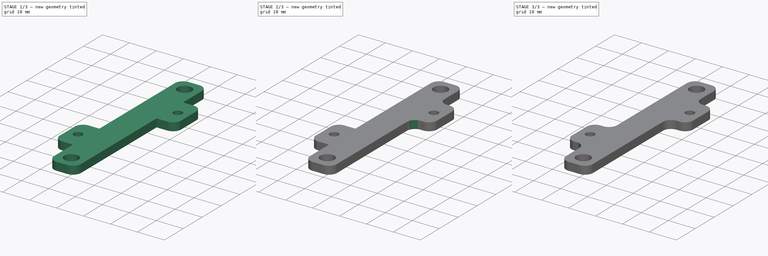
[diagram: build sequence overview — one tinted view per stage of 3, left to right]
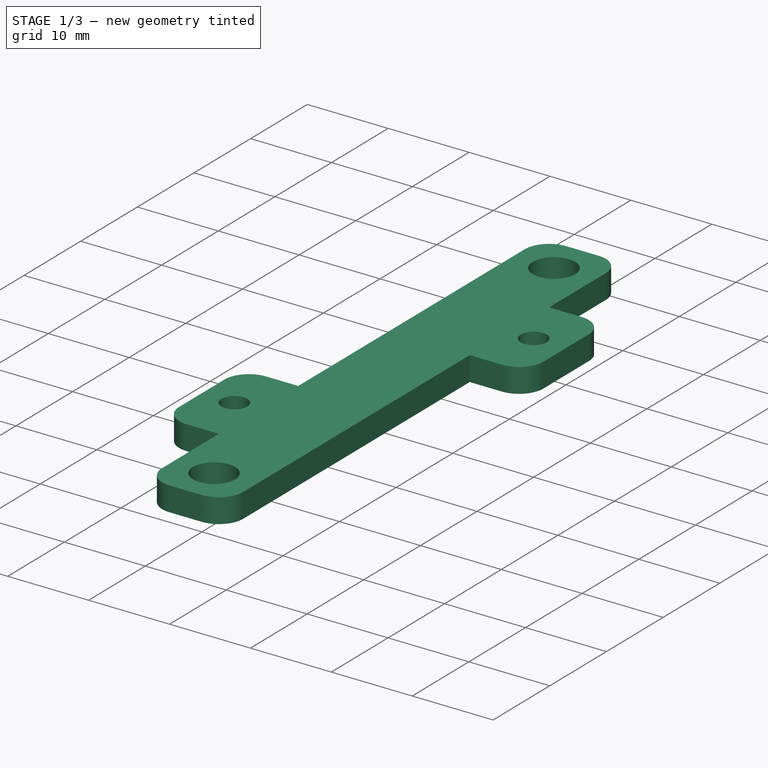
[diagram: stage 1 of 3 — iso view after this stage's code; geometry added in this stage tinted green]
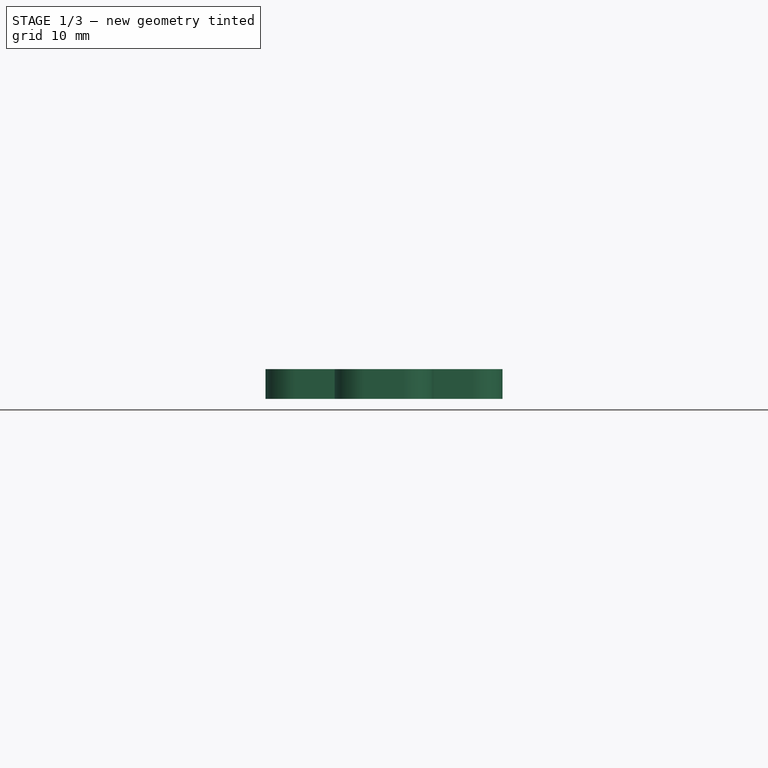
[diagram: stage 1 of 3 — front view after this stage's code; geometry added in this stage tinted green]
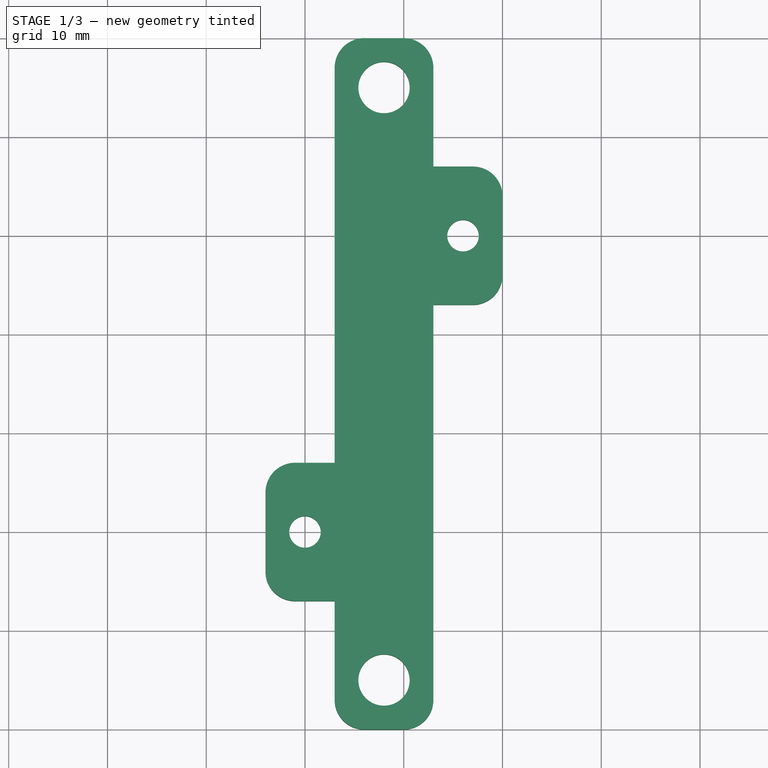
[diagram: stage 1 of 3 — top view after this stage's code; geometry added in this stage tinted green]
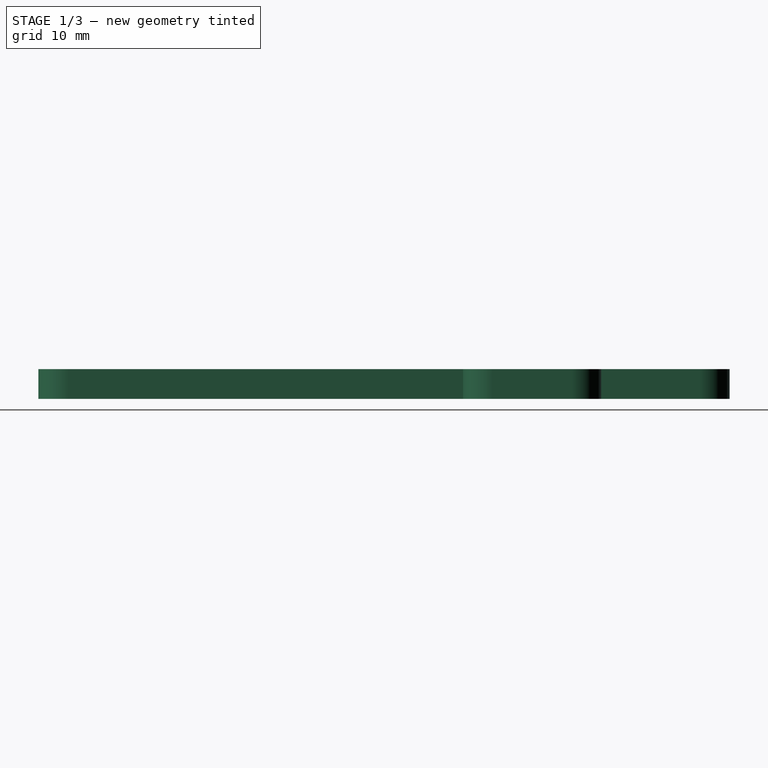
[diagram: stage 1 of 3 — right view after this stage's code; geometry added in this stage tinted green]
FCSTD DOCUMENT  (FreeCAD 0.19R24276 (Git))
Label: Lm2596_dcdc_holder
License: All rights reserved
LicenseURL: http://en.wikipedia.org/wiki/All_rights_reserved
objects: PartDesign::Fillet×5, Sketcher::SketchObject×1, PartDesign::Pad×1, PartDesign::Body×1
note: 14 computed .brp shape members not serialized (recipe doc carries the construction recipe); baked Part::Feature solids carry a one-line shape summary decoded from their .brp

FEATURE [Sketcher::SketchObject] Sketch
  FullyConstrained = false
  MapMode = 5
  Support = -> [XY_Plane]
  sketch-geometry (26):
    g0: Circle CenterX=0 CenterY=0 CenterZ=0 NormalX=0 NormalY=0 NormalZ=1 AngleXU=0 Radius=1.6
    g1: Circle CenterX=16 CenterY=30 CenterZ=0 NormalX=0 NormalY=0 NormalZ=1 AngleXU=0 Radius=1.6
    g2: LineSegment StartX=20 StartY=37 StartZ=0 EndX=20 EndY=23 EndZ=0
    g3: LineSegment StartX=-4 StartY=-7 StartZ=0 EndX=-4 EndY=37.7538 EndZ=0
    g4: Circle CenterX=8 CenterY=45 CenterZ=0 NormalX=0 NormalY=0 NormalZ=1 AngleXU=0 Radius=2.6
    g5: Circle CenterX=8 CenterY=25 CenterZ=0 NormalX=0 NormalY=0 NormalZ=1 AngleXU=0 Radius=2.6
    g6: Circle CenterX=8 CenterY=5 CenterZ=0 NormalX=0 NormalY=0 NormalZ=1 AngleXU=0 Radius=2.6
    g7: Circle CenterX=8 CenterY=-15 CenterZ=0 NormalX=0 NormalY=0 NormalZ=1 AngleXU=0 Radius=2.6
    g8: LineSegment StartX=8 StartY=-15 StartZ=0 EndX=8 EndY=15 EndZ=0
    g9: LineSegment StartX=3 StartY=50 StartZ=0 EndX=13 EndY=50 EndZ=0
    g10: LineSegment StartX=13 StartY=50 StartZ=0 EndX=13 EndY=-20 EndZ=0
    g11: LineSegment StartX=13 StartY=-20 StartZ=0 EndX=3 EndY=-20 EndZ=0
    g12: LineSegment StartX=3 StartY=-20 StartZ=0 EndX=3 EndY=50 EndZ=0
    g13: LineSegment StartX=8 StartY=45 StartZ=0 EndX=8 EndY=50 EndZ=0
    g14: LineSegment StartX=3 StartY=50 StartZ=0 EndX=13 EndY=50 EndZ=0
    g15: LineSegment StartX=13 StartY=50 StartZ=0 EndX=13 EndY=37 EndZ=0
    g16: LineSegment StartX=20 StartY=37 StartZ=0 EndX=13 EndY=37 EndZ=0
    g17: LineSegment StartX=20 StartY=37 StartZ=0 EndX=20 EndY=23 EndZ=0
    g18: LineSegment StartX=20 StartY=23 StartZ=0 EndX=13 EndY=23 EndZ=0
    g19: LineSegment StartX=13 StartY=23 StartZ=0 EndX=13 EndY=-20 EndZ=0
    g20: LineSegment StartX=3 StartY=-20 StartZ=0 EndX=13 EndY=-20 EndZ=0
    g21: LineSegment StartX=3 StartY=-20 StartZ=0 EndX=3 EndY=-7 EndZ=0
    g22: LineSegment StartX=-4 StartY=-7 StartZ=0 EndX=3 EndY=-7 EndZ=0
    g23: LineSegment StartX=-4 StartY=-7 StartZ=0 EndX=-4 EndY=7 EndZ=0
    g24: LineSegment StartX=-4 StartY=7 StartZ=0 EndX=3 EndY=7 EndZ=0
    g25: LineSegment StartX=3 StartY=7 StartZ=0 EndX=3 EndY=50 EndZ=0
  constraints (69):
    c: Coincident(g0,g-1)
    c: Diameter(g0) = 3.2
    c: Equal(g0,g1)
    c: DistanceX(g-1,g1) = 16
    c: DistanceY(g-1,g1) = 30
    c: Vertical(g2)
    c: Vertical(g3)
    c: DistanceX(g3,g-1) = 4
    c: DistanceY(g3,g-1) = 7
    c: Vertical(g5,g4)
    c: Diameter(g5) = 5.2
    c: Equal(g5,g4)
    c: DistanceY(g5,g4) = 20
    c: DistanceY(g6,g5) = 20
    c: Equal(g6,g5)
    c: Vertical(g6,g5)
    c: Vertical(g7,g6)
    c: Equal(g7,g6)
    c: DistanceY(g7,g6) = 20
    c: Coincident(g8,g7)
    c: Symmetric(g-1,g1,g8)
    c: Coincident(g9,g10)
    c: Coincident(g10,g11)
    c: Coincident(g11,g12)
    c: Coincident(g12,g9)
    c: Horizontal(g9)
    c: Horizontal(g11)
    c: Vertical(g10)
    c: Vertical(g12)
    c: Coincident(g13,g4)
    c: Vertical(g13)
    c: Symmetric(g9,g9,g13)
    c: Symmetric(g5,g6,g8)
    c: Coincident(g14,g9)
    c: Coincident(g15,g9)
    c: Vertical(g15)
    c: Coincident(g16,g15)
    c: Coincident(g14,g15)
    c: Coincident(g17,g16)
    c: Coincident(g17,g2)
    c: Coincident(g18,g17)
    c: Horizontal(g18)
    c: PointOnObject(g18,g10)
    c: Coincident(g19,g18)
    c: Vertical(g19)
    c: DistanceX(g14,g14) = 10
    c: DistanceY(g4,g14) = 5
    c: DistanceY(g11,g7) = 5
    c: Coincident(g20,g11)
    c: Horizontal(g20)
    c: Coincident(g19,g20)
    c: Coincident(g21,g20)
    c: Vertical(g21)
    c: Coincident(g22,g21)
    c: Coincident(g23,g22)
    c: Vertical(g23)
    c: Coincident(g24,g23)
    c: Horizontal(g24)
    c: PointOnObject(g24,g12)
    c: Coincident(g25,g24)
    c: Coincident(g25,g14)
    c: Coincident(g22,g3)
    c: DistanceY(g17,g1) = 7
    c: DistanceY(g1,g16) = 7
    c: Horizontal(g16)
    c: Coincident(g2,g16)
    c: Horizontal(g22)
    c: DistanceY(g0,g23) = 7
    c: DistanceX(g1,g16) = 4
FEATURE [PartDesign::Pad] Pad
  Direction = (1,1,1)
  Length = 3
  Length2 = 100
  Profile = -> Sketch
  Type = 0
FEATURE [PartDesign::Fillet] Fillet
  Base = -> Pad [Edge17,Edge20,Edge11,Edge8,Edge26,Edge29,Edge1,Edge2]
  BaseFeature = -> Pad
  Radius = 3
  SupportTransform = false
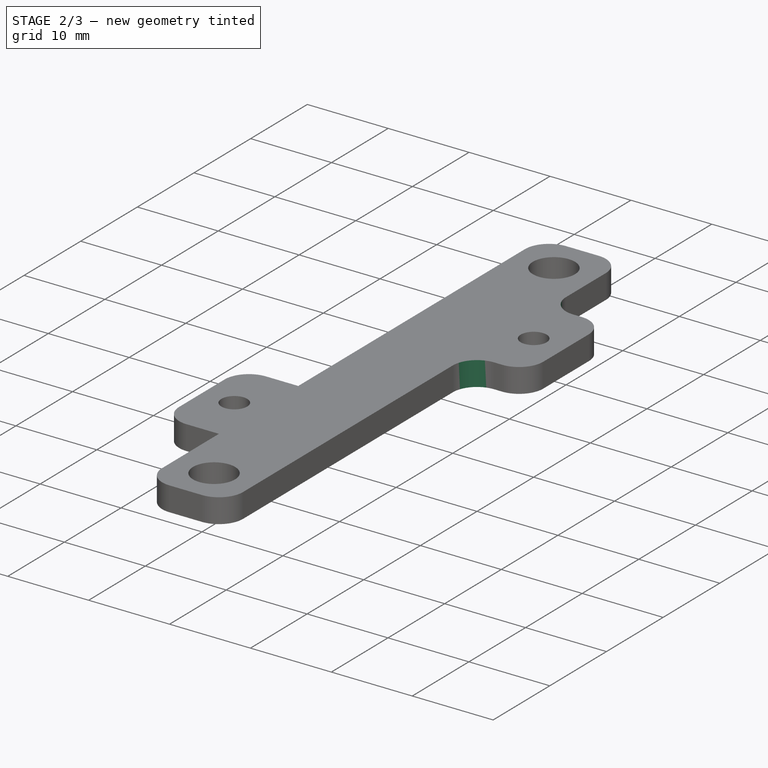
[diagram: stage 2 of 3 — iso view after this stage's code; geometry added in this stage tinted green]
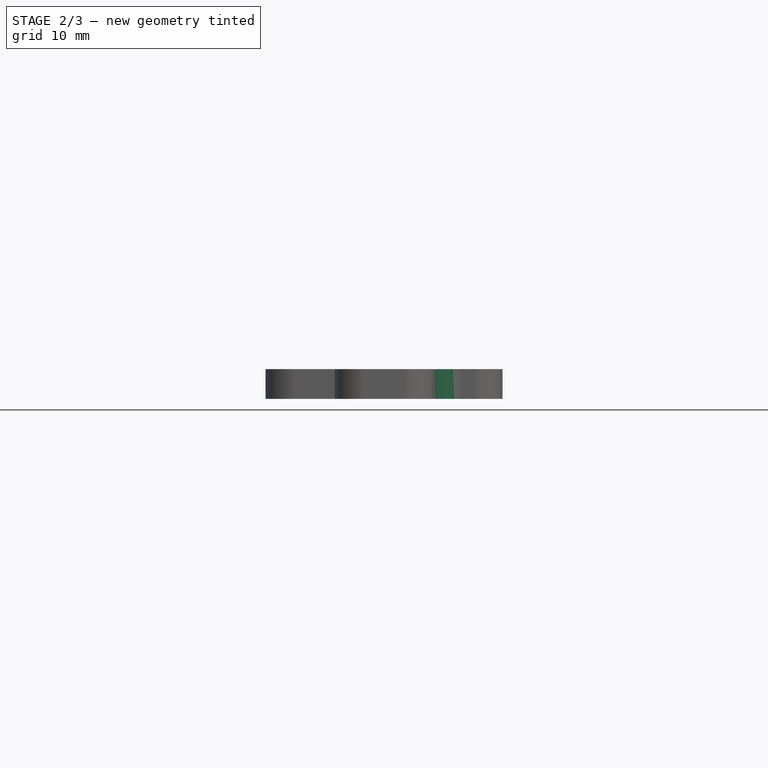
[diagram: stage 2 of 3 — front view after this stage's code; geometry added in this stage tinted green]
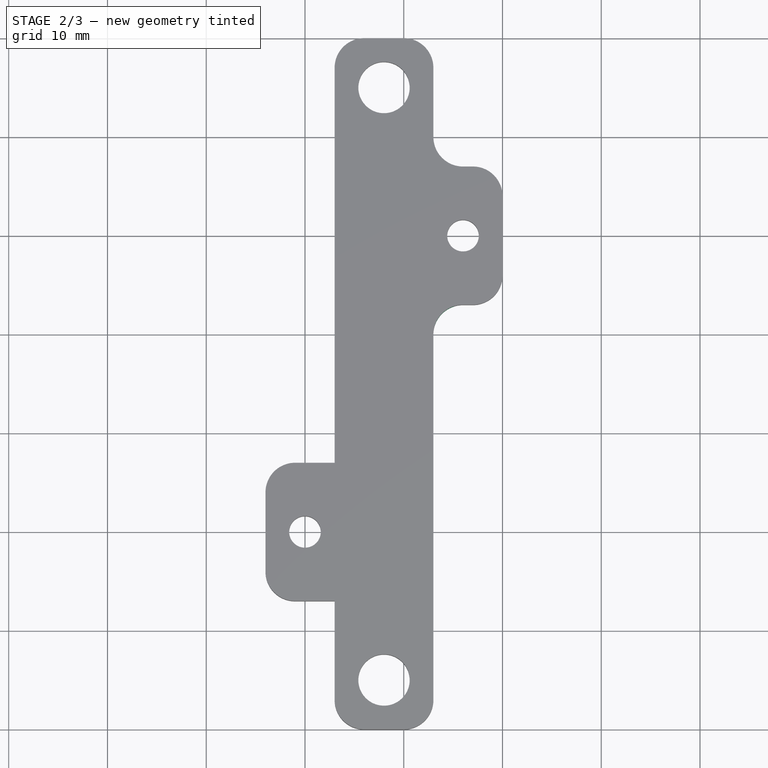
[diagram: stage 2 of 3 — top view after this stage's code; geometry added in this stage tinted green]
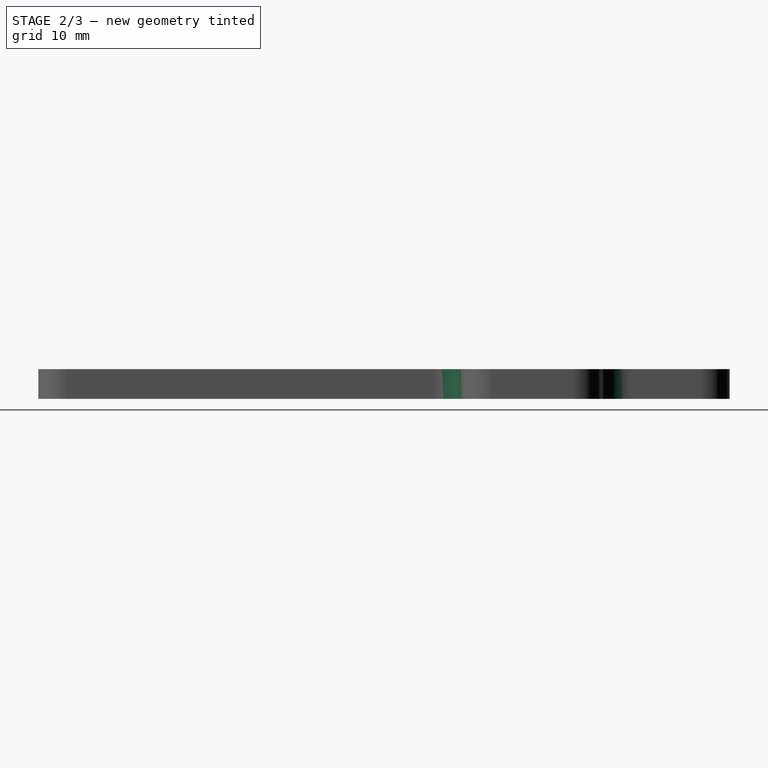
[diagram: stage 2 of 3 — right view after this stage's code; geometry added in this stage tinted green]
FEATURE [PartDesign::Fillet] Fillet001
  Base = -> Fillet [Edge54]
  BaseFeature = -> Fillet
  Radius = 3
  SupportTransform = false
FEATURE [PartDesign::Fillet] Fillet002
  Base = -> Fillet001 [Edge49]
  BaseFeature = -> Fillet001
  Radius = 3
  SupportTransform = false
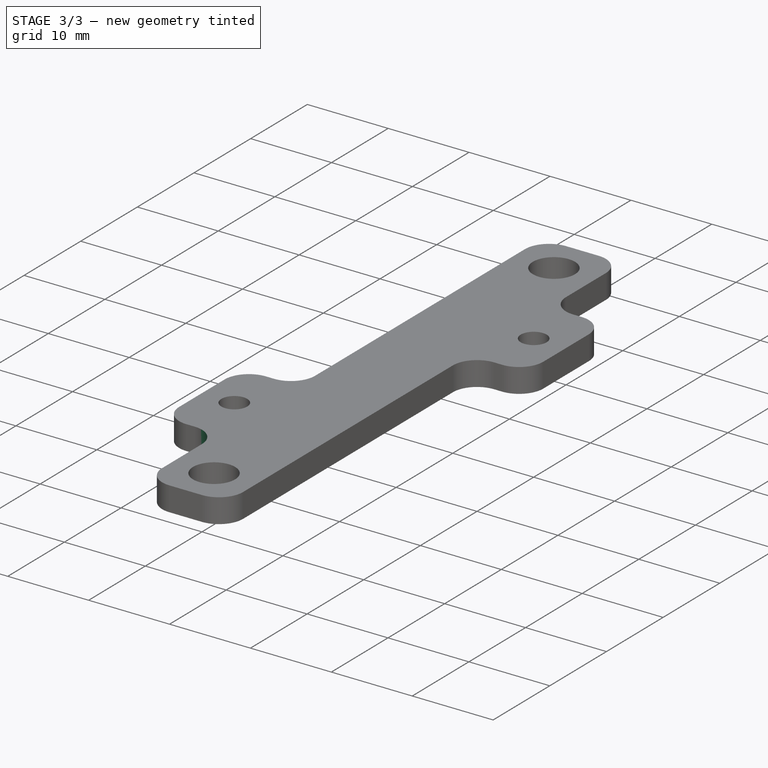
[diagram: stage 3 of 3 — iso view after this stage's code; geometry added in this stage tinted green]
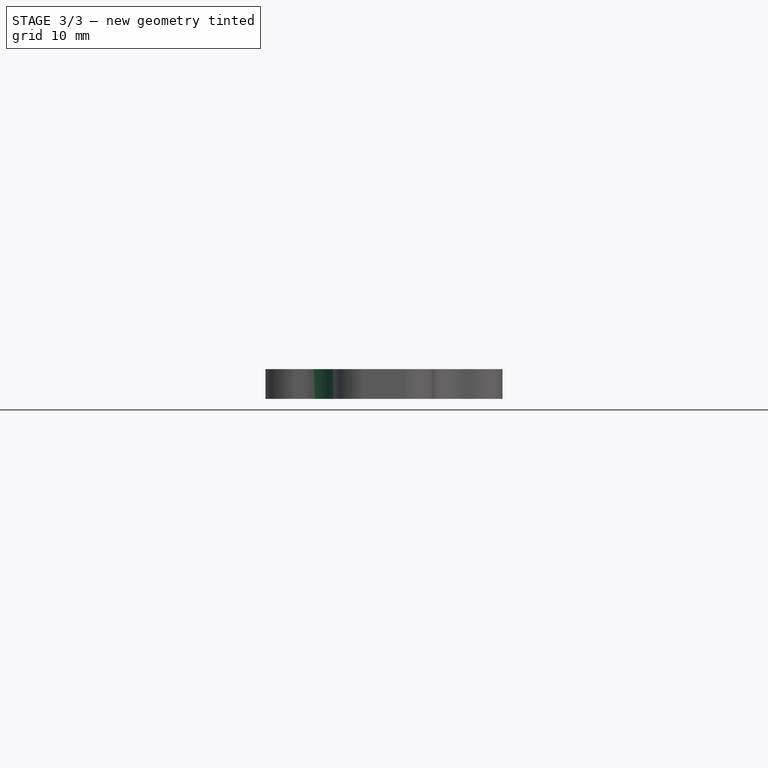
[diagram: stage 3 of 3 — front view after this stage's code; geometry added in this stage tinted green]
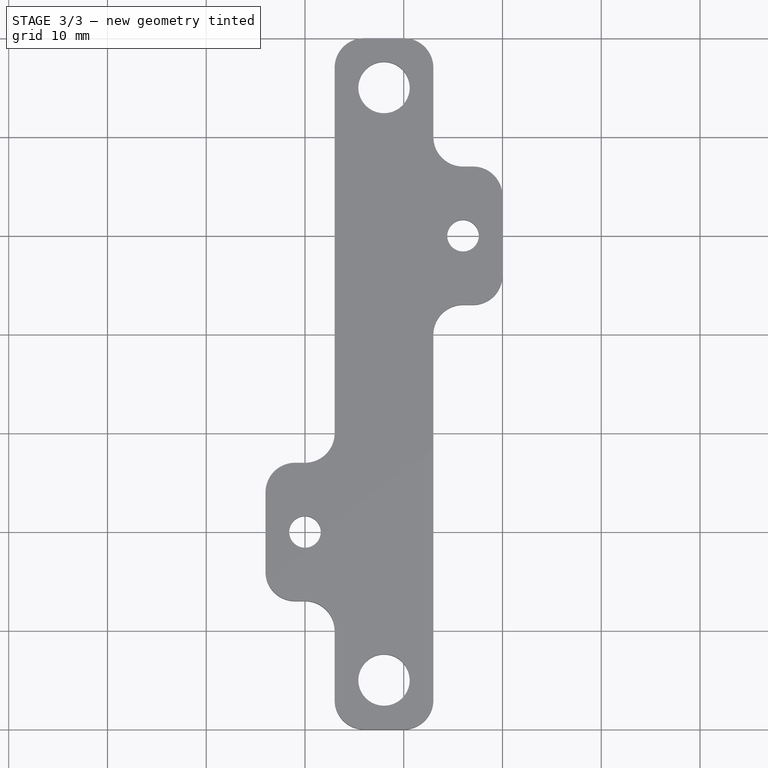
[diagram: stage 3 of 3 — top view after this stage's code; geometry added in this stage tinted green]
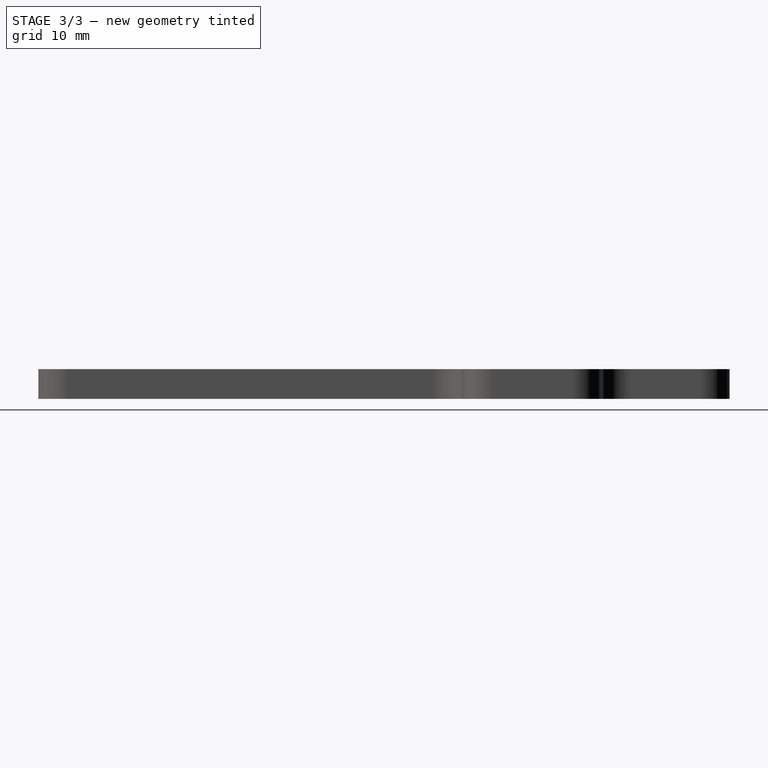
[diagram: stage 3 of 3 — right view after this stage's code; geometry added in this stage tinted green]
FEATURE [PartDesign::Fillet] Fillet003
  Base = -> Fillet002 [Edge50]
  BaseFeature = -> Fillet002
  Radius = 3
  SupportTransform = false
FEATURE [PartDesign::Fillet] Fillet004
  Base = -> Fillet003 [Edge51]
  BaseFeature = -> Fillet003
  Radius = 3
  SupportTransform = false
FEATURE [PartDesign::Body] Body
  Group = -> [Sketch,Pad,Fillet,Fillet001,Fillet002,Fillet003,Fillet004]
  Origin = -> Origin
  Tip = -> Fillet004
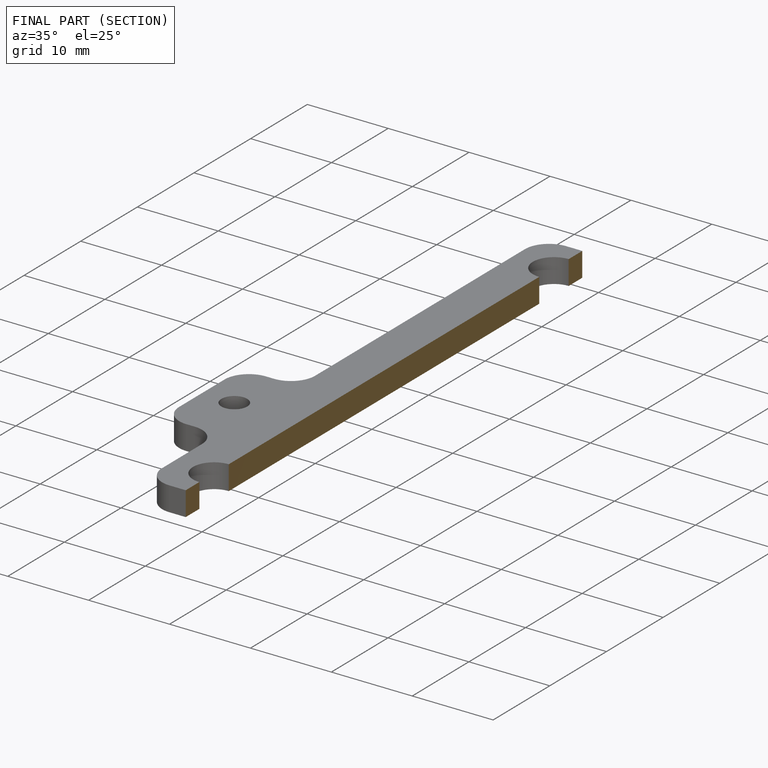
[diagram: finished part — half-section view (interior)]
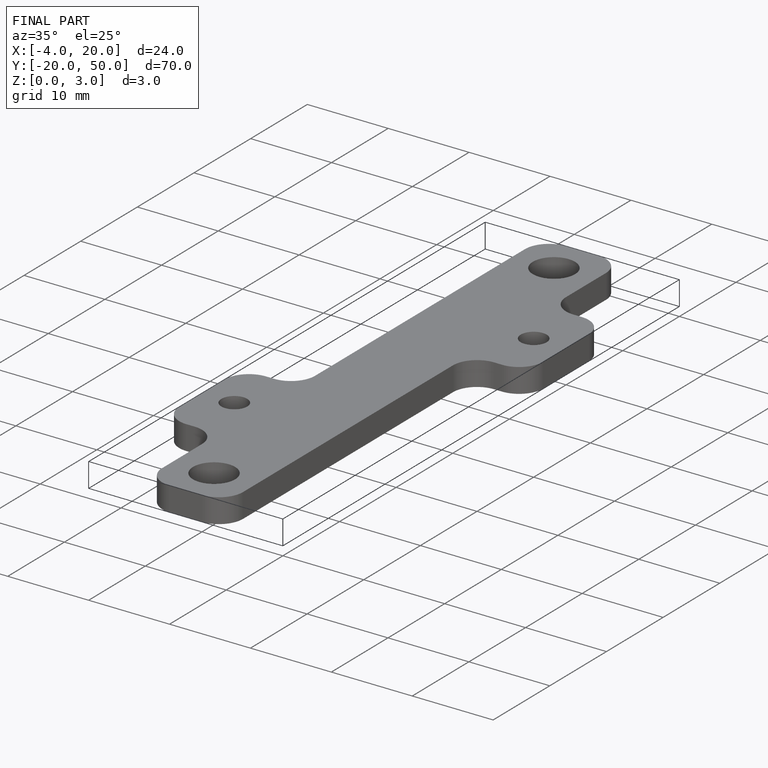
[diagram: finished part — iso view with bounding-box wireframe]
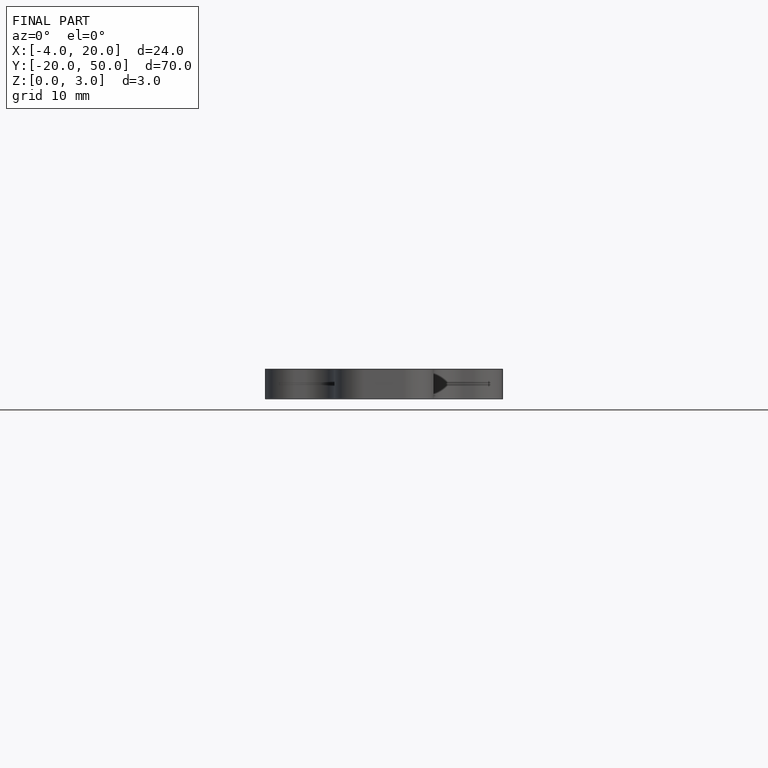
[diagram: finished part — front view with bounding-box wireframe]
